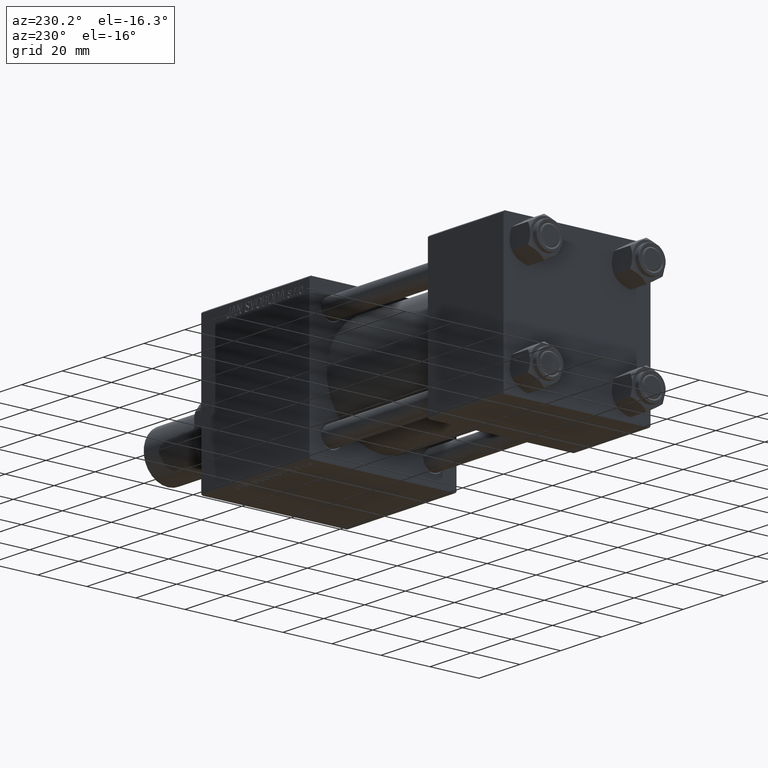
[diagram: clean part render]
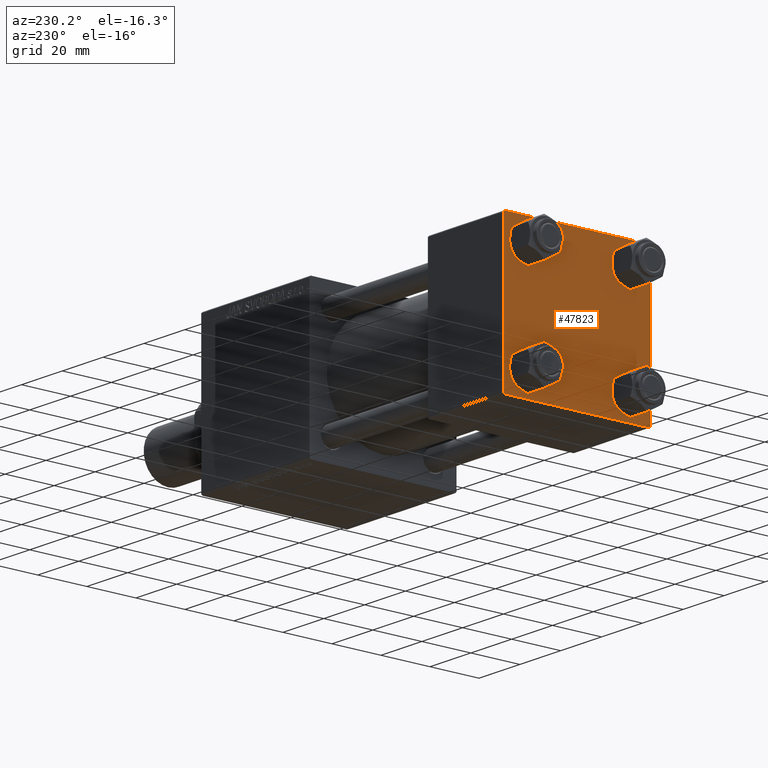
[diagram: same view with one face highlighted and labeled with its STEP entity id]
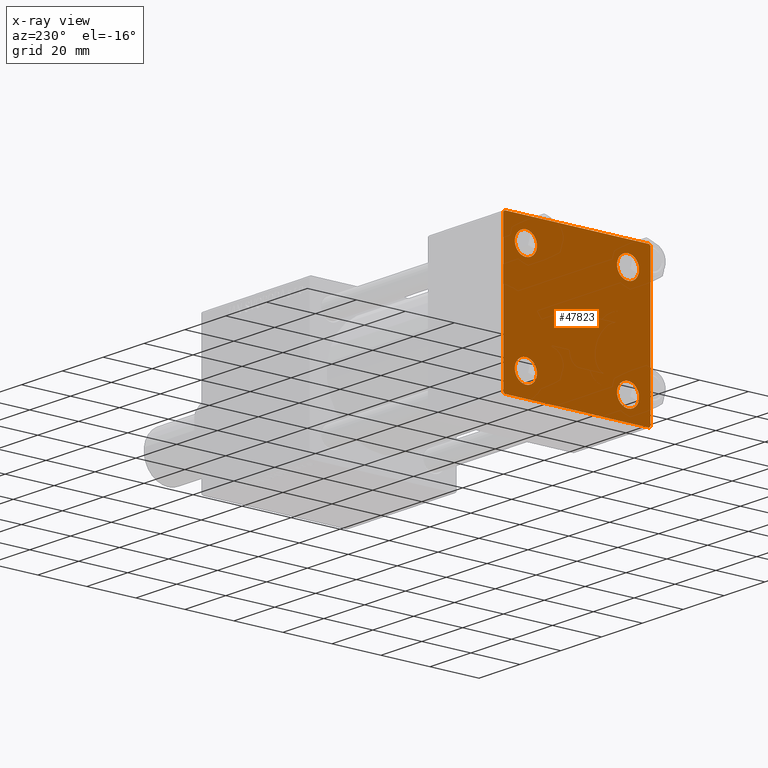
[diagram: x-ray of the same camera — body ghosted, the highlighted face saturated]
A machine part, auxiliary view. The second image highlights one B-rep face of the part: STEP entity #47823.
The next image is the same camera in x-ray: the body ghosted, the highlighted face saturated — about 0% of this face is hidden behind the body in this view.
In plain terms, the highlighted planar face has unit normal (-1, 0, 0).
Its self-contained STEP definition (entity closure, byte-faithful):
#276 = VECTOR ( 'NONE', #25562, 1000.000000000000114 ) ;
#558 = EDGE_LOOP ( 'NONE', ( #14064, #49657 ) ) ;
#752 = EDGE_CURVE ( 'NONE', #23208, #26535, #8286, .T. ) ;
#1725 = FACE_BOUND ( 'NONE', #16164, .T. ) ;
#1932 = CARTESIAN_POINT ( 'NONE',  ( 0.000000000000000000, -20.84999999999999076, 20.85000000000000497 ) ) ;
#1960 = AXIS2_PLACEMENT_3D ( 'NONE', #3533, #34817, #14833 ) ;
#1983 = CARTESIAN_POINT ( 'NONE',  ( 0.000000000000000000, 0.000000000000000000, 0.000000000000000000 ) ) ;
#2512 = EDGE_CURVE ( 'NONE', #45963, #16643, #30931, .T. ) ;
#2526 = CIRCLE ( 'NONE', #24627, 4.500000000000017764 ) ;
#2625 = LINE ( 'NONE', #21867, #45362 ) ;
#2873 = DIRECTION ( 'NONE',  ( 1.000000000000000000, -0.000000000000000000, 0.000000000000000000 ) ) ;
#3533 = CARTESIAN_POINT ( 'NONE',  ( 0.000000000000000000, 20.84999999999999787, -20.85000000000000142 ) ) ;
#3724 = EDGE_CURVE ( 'NONE', #4458, #31592, #2526, .T. ) ;
#3885 = EDGE_CURVE ( 'NONE', #47275, #19000, #26279, .T. ) ;
#3989 = ORIENTED_EDGE ( 'NONE', *, *, #34720, .T. ) ;
#4255 = DIRECTION ( 'NONE',  ( 0.000000000000000000, 0.000000000000000000, 1.000000000000000000 ) ) ;
#4458 = VERTEX_POINT ( 'NONE', #27096 ) ;
#4522 = ORIENTED_EDGE ( 'NONE', *, *, #42071, .T. ) ;
#4988 = AXIS2_PLACEMENT_3D ( 'NONE', #19579, #30852, #42125 ) ;
#5312 = LINE ( 'NONE', #14032, #276 ) ;
#5828 = FACE_OUTER_BOUND ( 'NONE', #21277, .T. ) ;
#5895 = CARTESIAN_POINT ( 'NONE',  ( 0.000000000000000000, -20.84999999999999076, 25.35000000000002274 ) ) ;
#6464 = CARTESIAN_POINT ( 'NONE',  ( 0.000000000000000000, 29.49999999999999289, 30.00000000000000000 ) ) ;
#6710 = DIRECTION ( 'NONE',  ( 1.000000000000000000, -0.000000000000000000, 0.000000000000000000 ) ) ;
#7338 = EDGE_CURVE ( 'NONE', #42242, #28466, #11977, .T. ) ;
#7411 = VECTOR ( 'NONE', #43305, 999.9999999999998863 ) ;
#7916 = LINE ( 'NONE', #35096, #31495 ) ;
#8286 = CIRCLE ( 'NONE', #4988, 4.500000000000017764 ) ;
#8303 = CARTESIAN_POINT ( 'NONE',  ( 0.000000000000000000, 29.49999999999997868, -30.00000000000000000 ) ) ;
#9684 = PLANE ( 'NONE',  #32338 ) ;
#10707 = DIRECTION ( 'NONE',  ( 1.000000000000000000, -0.000000000000000000, 0.000000000000000000 ) ) ;
#10857 = ORIENTED_EDGE ( 'NONE', *, *, #48372, .F. ) ;
#11279 = EDGE_CURVE ( 'NONE', #44460, #15746, #19178, .T. ) ;
#11392 = CARTESIAN_POINT ( 'NONE',  ( 0.000000000000000000, 29.99999999999999289, -29.50000000000000000 ) ) ;
#11457 = CARTESIAN_POINT ( 'NONE',  ( 0.000000000000000000, 20.84999999999999787, -20.85000000000000142 ) ) ;
#11469 = DIRECTION ( 'NONE',  ( 0.000000000000000000, -1.000000000000000000, -1.156482317317871725E-16 ) ) ;
#11878 = ORIENTED_EDGE ( 'NONE', *, *, #22908, .T. ) ;
#11977 = LINE ( 'NONE', #38881, #42726 ) ;
#13188 = EDGE_CURVE ( 'NONE', #31592, #4458, #42947, .T. ) ;
#13317 = LINE ( 'NONE', #40981, #35411 ) ;
#13538 = FACE_BOUND ( 'NONE', #38798, .T. ) ;
#14032 = CARTESIAN_POINT ( 'NONE',  ( -0.000000000000000000, -29.74999999999999645, 29.74999999999999645 ) ) ;
#14064 = ORIENTED_EDGE ( 'NONE', *, *, #11279, .T. ) ;
#14791 = VECTOR ( 'NONE', #27085, 1000.000000000000114 ) ;
#14833 = DIRECTION ( 'NONE',  ( 0.000000000000000000, 0.000000000000000000, 1.000000000000000000 ) ) ;
#15125 = DIRECTION ( 'NONE',  ( 0.000000000000000000, 0.000000000000000000, -1.000000000000000000 ) ) ;
#15746 = VERTEX_POINT ( 'NONE', #39406 ) ;
#16164 = EDGE_LOOP ( 'NONE', ( #39901, #18913 ) ) ;
#16643 = VERTEX_POINT ( 'NONE', #30482 ) ;
#16778 = VECTOR ( 'NONE', #22456, 1000.000000000000114 ) ;
#16827 = DIRECTION ( 'NONE',  ( 0.000000000000000000, 0.000000000000000000, 1.000000000000000000 ) ) ;
#18913 = ORIENTED_EDGE ( 'NONE', *, *, #21833, .T. ) ;
#19000 = VERTEX_POINT ( 'NONE', #25793 ) ;
#19178 = CIRCLE ( 'NONE', #1960, 4.500000000000017764 ) ;
#19579 = CARTESIAN_POINT ( 'NONE',  ( 0.000000000000000000, -20.84999999999999076, -20.85000000000000497 ) ) ;
#20512 = ORIENTED_EDGE ( 'NONE', *, *, #3885, .T. ) ;
#20798 = CARTESIAN_POINT ( 'NONE',  ( 0.000000000000000000, -20.84999999999999076, -25.35000000000002274 ) ) ;
#21277 = EDGE_LOOP ( 'NONE', ( #45567, #11878, #46221, #4522, #10857, #3989, #31046, #33918 ) ) ;
#21425 = CARTESIAN_POINT ( 'NONE',  ( 0.000000000000000000, -20.84999999999999076, 20.85000000000000497 ) ) ;
#21833 = EDGE_CURVE ( 'NONE', #26535, #23208, #29491, .T. ) ;
#21867 = CARTESIAN_POINT ( 'NONE',  ( 0.000000000000000000, 29.99999999999999289, 30.00000000000000000 ) ) ;
#22370 = DIRECTION ( 'NONE',  ( 0.000000000000000000, 0.000000000000000000, 1.000000000000000000 ) ) ;
#22456 = DIRECTION ( 'NONE',  ( 0.000000000000000000, -0.7071067811865474617, 0.7071067811865474617 ) ) ;
#22562 = CARTESIAN_POINT ( 'NONE',  ( 0.000000000000000000, -30.00000000000000000, -29.50000000000001776 ) ) ;
#22908 = EDGE_CURVE ( 'NONE', #46980, #42242, #26921, .T. ) ;
#23208 = VERTEX_POINT ( 'NONE', #41975 ) ;
#24627 = AXIS2_PLACEMENT_3D ( 'NONE', #46312, #27595, #4255 ) ;
#25017 = ORIENTED_EDGE ( 'NONE', *, *, #27034, .T. ) ;
#25318 = DIRECTION ( 'NONE',  ( -1.000000000000000000, 0.000000000000000000, -0.000000000000000000 ) ) ;
#25562 = DIRECTION ( 'NONE',  ( -0.000000000000000000, 0.7071067811865474617, 0.7071067811865474617 ) ) ;
#25788 = CIRCLE ( 'NONE', #37243, 4.500000000000017764 ) ;
#25793 = CARTESIAN_POINT ( 'NONE',  ( 0.000000000000000000, -20.84999999999999076, 16.34999999999998721 ) ) ;
#26202 = CARTESIAN_POINT ( 'NONE',  ( 0.000000000000000000, -29.50000000000000000, -30.00000000000000711 ) ) ;
#26279 = CIRCLE ( 'NONE', #32831, 4.500000000000017764 ) ;
#26535 = VERTEX_POINT ( 'NONE', #20798 ) ;
#26677 = CARTESIAN_POINT ( 'NONE',  ( 0.000000000000000000, 29.74999999999957723, -29.75000000000040501 ) ) ;
#26921 = LINE ( 'NONE', #26677, #7411 ) ;
#27034 = EDGE_CURVE ( 'NONE', #19000, #47275, #29522, .T. ) ;
#27085 = DIRECTION ( 'NONE',  ( 0.000000000000000000, 0.7071067811865474617, -0.7071067811865474617 ) ) ;
#27096 = CARTESIAN_POINT ( 'NONE',  ( 0.000000000000000000, 20.84999999999999787, 16.34999999999998366 ) ) ;
#27562 = CARTESIAN_POINT ( 'NONE',  ( 0.000000000000000000, -30.00000000000000000, 29.49999999999999289 ) ) ;
#27595 = DIRECTION ( 'NONE',  ( 1.000000000000000000, -0.000000000000000000, 0.000000000000000000 ) ) ;
#28076 = DIRECTION ( 'NONE',  ( 1.000000000000000000, -0.000000000000000000, 0.000000000000000000 ) ) ;
#28466 = VERTEX_POINT ( 'NONE', #26202 ) ;
#28580 = DIRECTION ( 'NONE',  ( 0.000000000000000000, 0.000000000000000000, 1.000000000000000000 ) ) ;
#29203 = DIRECTION ( 'NONE',  ( 0.000000000000000000, -1.000000000000000000, -1.156482317317871725E-16 ) ) ;
#29491 = CIRCLE ( 'NONE', #33547, 4.500000000000017764 ) ;
#29522 = CIRCLE ( 'NONE', #40136, 4.500000000000017764 ) ;
#30482 = CARTESIAN_POINT ( 'NONE',  ( 0.000000000000000000, 29.99999999999999289, 29.50000000000000000 ) ) ;
#30852 = DIRECTION ( 'NONE',  ( 1.000000000000000000, -0.000000000000000000, 0.000000000000000000 ) ) ;
#30931 = LINE ( 'NONE', #50129, #14791 ) ;
#31046 = ORIENTED_EDGE ( 'NONE', *, *, #31583, .F. ) ;
#31495 = VECTOR ( 'NONE', #15125, 1000.000000000000000 ) ;
#31583 = EDGE_CURVE ( 'NONE', #45963, #44975, #13317, .T. ) ;
#31592 = VERTEX_POINT ( 'NONE', #37142 ) ;
#32338 = AXIS2_PLACEMENT_3D ( 'NONE', #1983, #25318, #40936 ) ;
#32831 = AXIS2_PLACEMENT_3D ( 'NONE', #21425, #28076, #28580 ) ;
#33013 = FACE_BOUND ( 'NONE', #558, .T. ) ;
#33514 = FACE_BOUND ( 'NONE', #38626, .T. ) ;
#33547 = AXIS2_PLACEMENT_3D ( 'NONE', #41830, #6710, #22370 ) ;
#33859 = ORIENTED_EDGE ( 'NONE', *, *, #13188, .T. ) ;
#33918 = ORIENTED_EDGE ( 'NONE', *, *, #2512, .T. ) ;
#34720 = EDGE_CURVE ( 'NONE', #43183, #44975, #5312, .T. ) ;
#34817 = DIRECTION ( 'NONE',  ( 1.000000000000000000, -0.000000000000000000, 0.000000000000000000 ) ) ;
#35096 = CARTESIAN_POINT ( 'NONE',  ( 0.000000000000000000, -30.00000000000000000, 29.99999999999999289 ) ) ;
#35401 = EDGE_CURVE ( 'NONE', #16643, #46980, #2625, .T. ) ;
#35411 = VECTOR ( 'NONE', #29203, 1000.000000000000000 ) ;
#37142 = CARTESIAN_POINT ( 'NONE',  ( 0.000000000000000000, 20.84999999999999787, 25.35000000000001918 ) ) ;
#37243 = AXIS2_PLACEMENT_3D ( 'NONE', #11457, #10707, #41960 ) ;
#37248 = AXIS2_PLACEMENT_3D ( 'NONE', #37979, #2873, #49759 ) ;
#37568 = CARTESIAN_POINT ( 'NONE',  ( 0.000000000000000000, -29.75000000000001066, -29.75000000000001066 ) ) ;
#37979 = CARTESIAN_POINT ( 'NONE',  ( 0.000000000000000000, 20.84999999999999787, 20.85000000000000142 ) ) ;
#38626 = EDGE_LOOP ( 'NONE', ( #20512, #25017 ) ) ;
#38798 = EDGE_LOOP ( 'NONE', ( #33859, #44650 ) ) ;
#38881 = CARTESIAN_POINT ( 'NONE',  ( 0.000000000000000000, 29.99999999999999289, -30.00000000000000000 ) ) ;
#39406 = CARTESIAN_POINT ( 'NONE',  ( 0.000000000000000000, 20.84999999999999787, -25.35000000000001918 ) ) ;
#39585 = CARTESIAN_POINT ( 'NONE',  ( 0.000000000000000000, 20.84999999999999787, -16.34999999999998366 ) ) ;
#39901 = ORIENTED_EDGE ( 'NONE', *, *, #752, .T. ) ;
#40136 = AXIS2_PLACEMENT_3D ( 'NONE', #1932, #40635, #16827 ) ;
#40635 = DIRECTION ( 'NONE',  ( 1.000000000000000000, -0.000000000000000000, 0.000000000000000000 ) ) ;
#40936 = DIRECTION ( 'NONE',  ( -0.000000000000000000, 0.000000000000000000, 1.000000000000000000 ) ) ;
#40981 = CARTESIAN_POINT ( 'NONE',  ( 0.000000000000000000, 29.99999999999999289, 30.00000000000000000 ) ) ;
#41830 = CARTESIAN_POINT ( 'NONE',  ( 0.000000000000000000, -20.84999999999999076, -20.85000000000000497 ) ) ;
#41960 = DIRECTION ( 'NONE',  ( 0.000000000000000000, 0.000000000000000000, 1.000000000000000000 ) ) ;
#41975 = CARTESIAN_POINT ( 'NONE',  ( 0.000000000000000000, -20.84999999999999076, -16.34999999999998721 ) ) ;
#42071 = EDGE_CURVE ( 'NONE', #28466, #46205, #45008, .T. ) ;
#42125 = DIRECTION ( 'NONE',  ( 0.000000000000000000, 0.000000000000000000, 1.000000000000000000 ) ) ;
#42242 = VERTEX_POINT ( 'NONE', #8303 ) ;
#42726 = VECTOR ( 'NONE', #11469, 1000.000000000000000 ) ;
#42947 = CIRCLE ( 'NONE', #37248, 4.500000000000017764 ) ;
#43183 = VERTEX_POINT ( 'NONE', #27562 ) ;
#43305 = DIRECTION ( 'NONE',  ( -0.000000000000000000, -0.7071067811865574537, -0.7071067811865376918 ) ) ;
#44460 = VERTEX_POINT ( 'NONE', #39585 ) ;
#44650 = ORIENTED_EDGE ( 'NONE', *, *, #3724, .T. ) ;
#44975 = VERTEX_POINT ( 'NONE', #49510 ) ;
#45008 = LINE ( 'NONE', #37568, #16778 ) ;
#45362 = VECTOR ( 'NONE', #49516, 1000.000000000000000 ) ;
#45567 = ORIENTED_EDGE ( 'NONE', *, *, #35401, .T. ) ;
#45963 = VERTEX_POINT ( 'NONE', #6464 ) ;
#46205 = VERTEX_POINT ( 'NONE', #22562 ) ;
#46221 = ORIENTED_EDGE ( 'NONE', *, *, #7338, .T. ) ;
#46312 = CARTESIAN_POINT ( 'NONE',  ( 0.000000000000000000, 20.84999999999999787, 20.85000000000000142 ) ) ;
#46980 = VERTEX_POINT ( 'NONE', #11392 ) ;
#47275 = VERTEX_POINT ( 'NONE', #5895 ) ;
#47823 = ADVANCED_FACE ( 'NONE', ( #33514, #1725, #33013, #13538, #5828 ), #9684, .T. ) ;
#48372 = EDGE_CURVE ( 'NONE', #43183, #46205, #7916, .T. ) ;
#48754 = EDGE_CURVE ( 'NONE', #15746, #44460, #25788, .T. ) ;
#49510 = CARTESIAN_POINT ( 'NONE',  ( 0.000000000000000000, -29.49999999999998579, 29.99999999999999289 ) ) ;
#49516 = DIRECTION ( 'NONE',  ( 0.000000000000000000, 0.000000000000000000, -1.000000000000000000 ) ) ;
#49657 = ORIENTED_EDGE ( 'NONE', *, *, #48754, .T. ) ;
#49759 = DIRECTION ( 'NONE',  ( 0.000000000000000000, 0.000000000000000000, 1.000000000000000000 ) ) ;
#50129 = CARTESIAN_POINT ( 'NONE',  ( 0.000000000000000000, 29.74999999999999645, 29.74999999999999645 ) ) ;